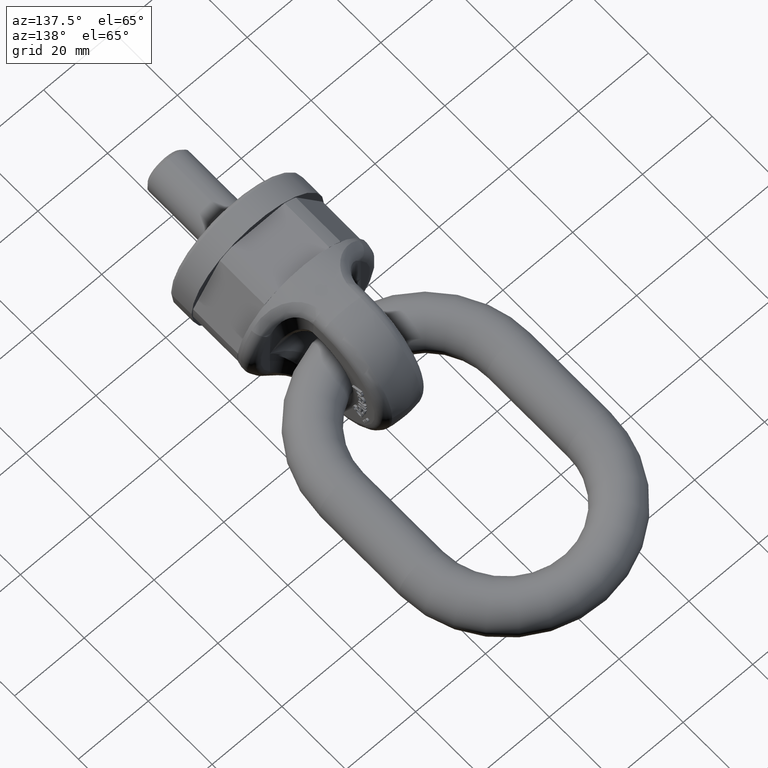
[diagram: clean part render]
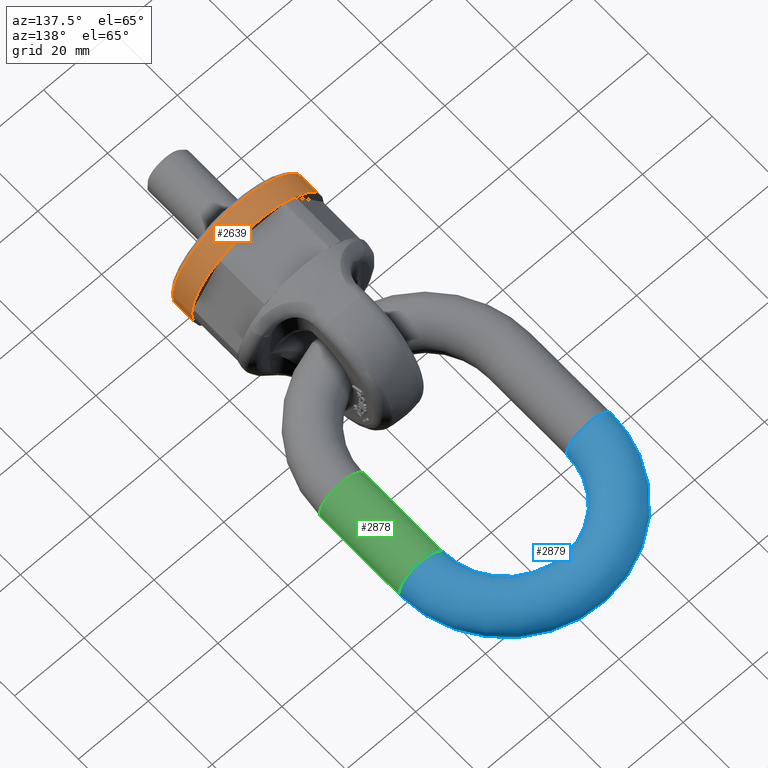
[diagram: same view with three faces highlighted in distinct colors, each labeled with its STEP entity id]
A machine part, auxiliary view with three faces highlighted in distinct colors.
Their STEP definitions:

[orange] entity #2639 — the highlighted cylindrical surface (bore or boss wall) has radius 19 mm, axis along (0, -1, 0).
#2012=CYLINDRICAL_SURFACE('',#5608,19.);
#2639=ADVANCED_FACE('',(#2989,#2990),#2012,.T.);
#2989=FACE_BOUND('',#3061,.T.);
#2990=FACE_BOUND('',#3062,.T.);
#3061=EDGE_LOOP('',(#3358));
#3062=EDGE_LOOP('',(#3359));
#3358=ORIENTED_EDGE('',*,*,#4948,.T.);
#3359=ORIENTED_EDGE('',*,*,#4935,.T.);
#4537=VERTEX_POINT('',#6568);
#4550=VERTEX_POINT('',#6595);
#4935=EDGE_CURVE('',#4537,#4537,#5531,.T.);
#4948=EDGE_CURVE('',#4550,#4550,#5538,.T.);
#5531=CIRCLE('',#5599,19.);
#5538=CIRCLE('',#5607,19.);
#5599=AXIS2_PLACEMENT_3D('',#6567,#5809,#5810);
#5607=AXIS2_PLACEMENT_3D('',#6594,#5831,#5832);
#5608=AXIS2_PLACEMENT_3D('',#6596,#5833,#5834);
#5809=DIRECTION('',(3.82702124733548E-17,-1.,0.));
#5810=DIRECTION('',(1.,4.56506177888633E-17,0.));
#5831=DIRECTION('',(-3.82702124733548E-17,1.,0.));
#5832=DIRECTION('',(1.,3.42379633416475E-17,0.));
#5833=DIRECTION('',(3.82702124733548E-17,-1.,0.));
#5834=DIRECTION('',(1.,4.56506177888633E-17,0.));
#6567=CARTESIAN_POINT('',(-2.67891487313483E-16,7.,0.));
#6568=CARTESIAN_POINT('',(19.,7.,0.));
#6594=CARTESIAN_POINT('',(-3.82702124733548E-17,0.999999999999999,0.));
#6595=CARTESIAN_POINT('',(19.,1.,0.));
#6596=CARTESIAN_POINT('',(-2.67891487313483E-16,7.,0.));

[blue] entity #2879 — the highlighted toroidal blend (fillet) surface has major radius 24 mm and minor (blend) radius 6.5 mm.
#1797=TOROIDAL_SURFACE('',#5800,24.,6.5);
#2879=ADVANCED_FACE('',(#3055,#3056),#1797,.T.);
#3055=FACE_BOUND('',#3341,.T.);
#3056=FACE_BOUND('',#3342,.T.);
#3341=EDGE_LOOP('',(#4533));
#3342=EDGE_LOOP('',(#4534));
#4533=ORIENTED_EDGE('',*,*,#5528,.F.);
#4534=ORIENTED_EDGE('',*,*,#5526,.T.);
#4930=VERTEX_POINT('',#9720);
#4932=VERTEX_POINT('',#9726);
#5526=EDGE_CURVE('',#4930,#4930,#5592,.T.);
#5528=EDGE_CURVE('',#4932,#4932,#5594,.T.);
#5592=CIRCLE('',#5794,6.5);
#5594=CIRCLE('',#5798,6.5);
#5794=AXIS2_PLACEMENT_3D('',#9719,#6547,#6548);
#5798=AXIS2_PLACEMENT_3D('',#9725,#6555,#6556);
#5800=AXIS2_PLACEMENT_3D('',#9728,#6559,#6560);
#6547=DIRECTION('',(-1.01064309961486E-15,1.,0.));
#6548=DIRECTION('',(0.,0.,-1.));
#6555=DIRECTION('',(0.,-1.,0.));
#6556=DIRECTION('',(0.,0.,-1.));
#6559=DIRECTION('',(0.,0.,1.));
#6560=DIRECTION('',(1.,0.,0.));
#9719=CARTESIAN_POINT('',(-24.,84.5,0.));
#9720=CARTESIAN_POINT('',(-24.,84.5,-6.5));
#9725=CARTESIAN_POINT('',(24.,84.5,0.));
#9726=CARTESIAN_POINT('',(24.,84.5,-6.5));
#9728=CARTESIAN_POINT('',(1.73472347597681E-14,84.5,0.));

[green] entity #2878 — the highlighted cylindrical surface (bore or boss wall) has radius 6.5 mm, axis along (0, 1, 0).
#2032=CYLINDRICAL_SURFACE('',#5799,6.5);
#2878=ADVANCED_FACE('',(#3053,#3054),#2032,.T.);
#3053=FACE_BOUND('',#3339,.T.);
#3054=FACE_BOUND('',#3340,.T.);
#3339=EDGE_LOOP('',(#4531));
#3340=EDGE_LOOP('',(#4532));
#4531=ORIENTED_EDGE('',*,*,#5527,.F.);
#4532=ORIENTED_EDGE('',*,*,#5528,.T.);
#4931=VERTEX_POINT('',#9723);
#4932=VERTEX_POINT('',#9726);
#5527=EDGE_CURVE('',#4931,#4931,#5593,.T.);
#5528=EDGE_CURVE('',#4932,#4932,#5594,.T.);
#5593=CIRCLE('',#5796,6.5);
#5594=CIRCLE('',#5798,6.5);
#5796=AXIS2_PLACEMENT_3D('',#9722,#6551,#6552);
#5798=AXIS2_PLACEMENT_3D('',#9725,#6555,#6556);
#5799=AXIS2_PLACEMENT_3D('',#9727,#6557,#6558);
#6551=DIRECTION('',(0.,-1.,0.));
#6552=DIRECTION('',(0.,0.,-1.));
#6555=DIRECTION('',(0.,-1.,0.));
#6556=DIRECTION('',(0.,0.,-1.));
#6557=DIRECTION('',(0.,1.,0.));
#6558=DIRECTION('',(0.,0.,1.));
#9722=CARTESIAN_POINT('',(24.,59.5,0.));
#9723=CARTESIAN_POINT('',(24.,59.5,-6.5));
#9725=CARTESIAN_POINT('',(24.,84.5,0.));
#9726=CARTESIAN_POINT('',(24.,84.5,-6.5));
#9727=CARTESIAN_POINT('',(24.,59.5,0.));